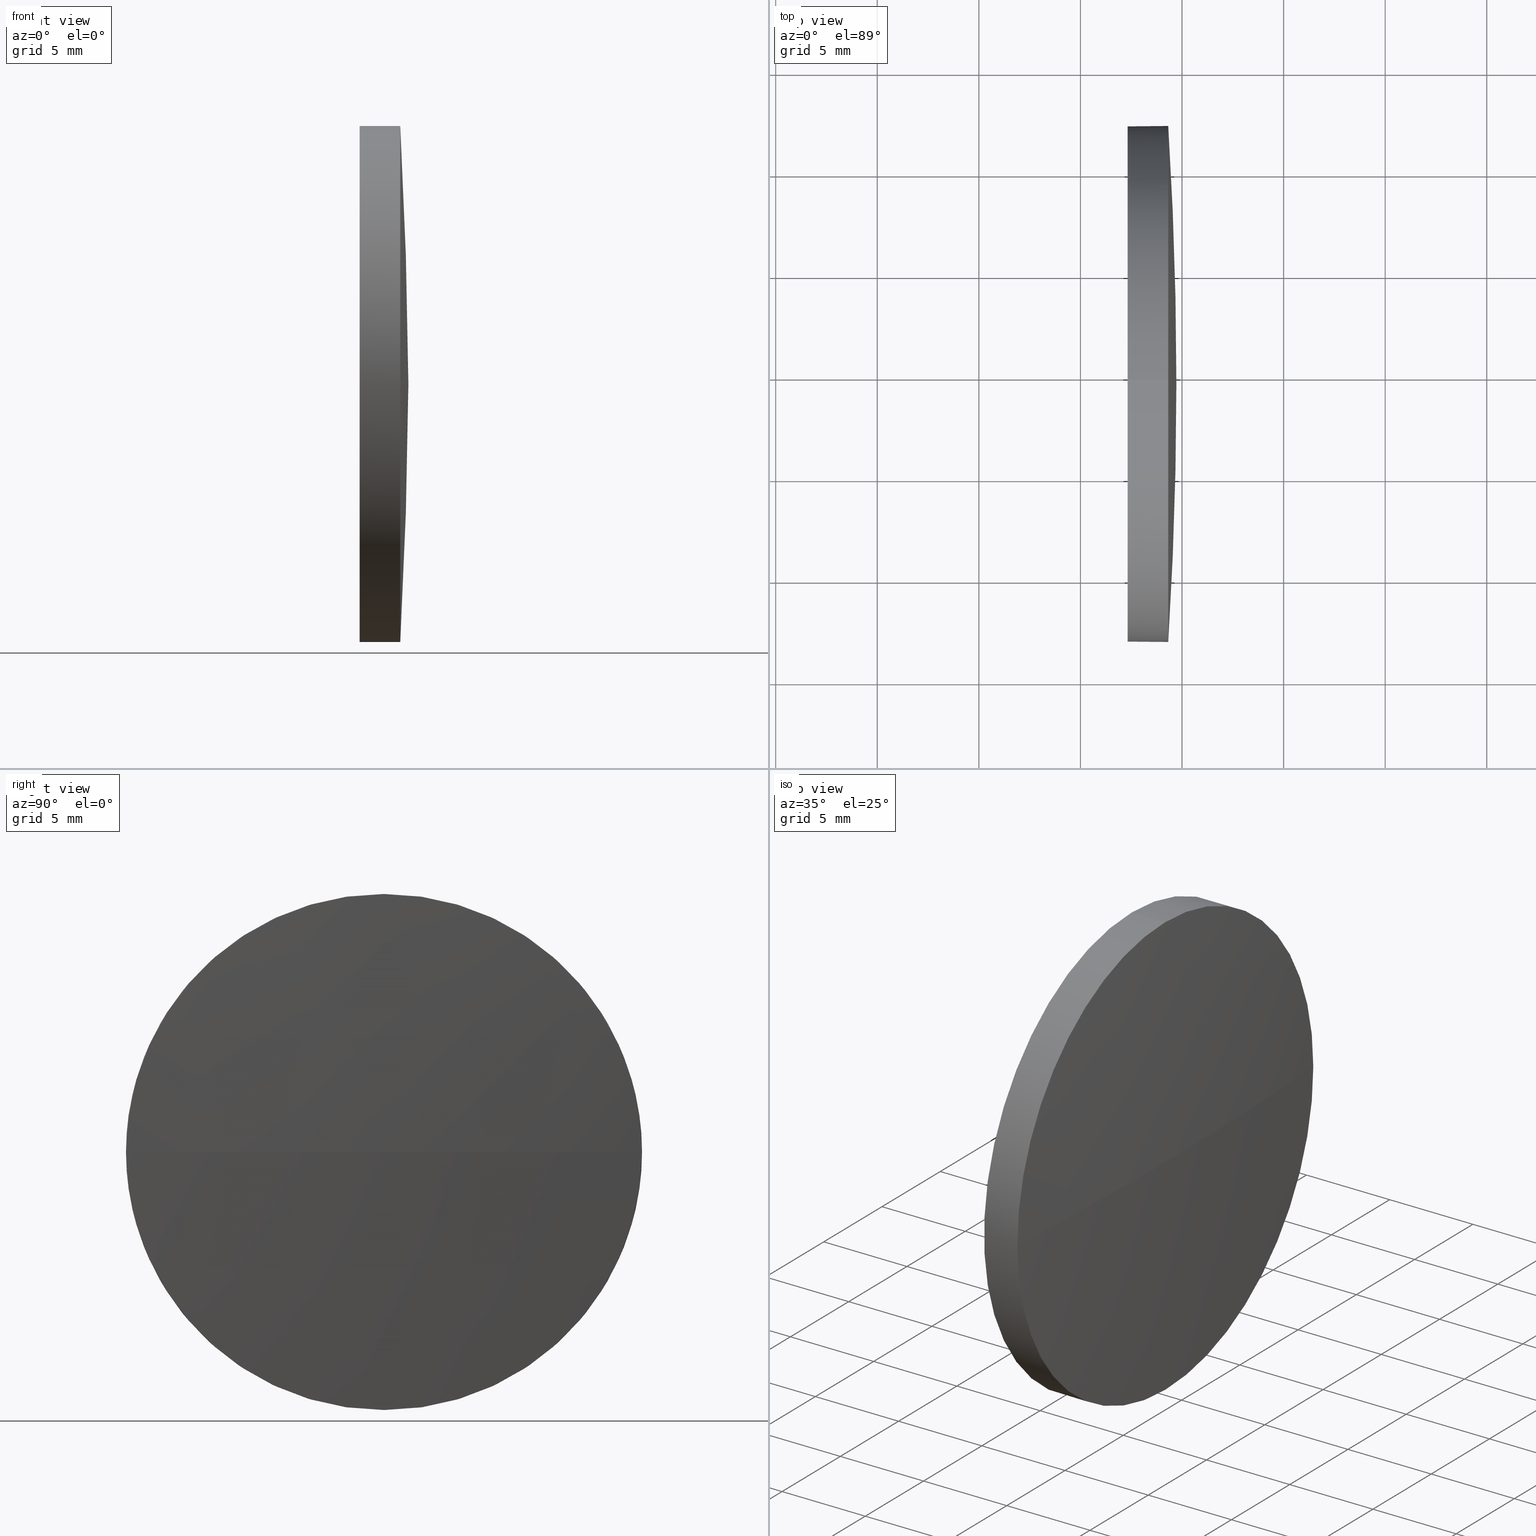
[diagram: canonical four-view strip — front | top / right | iso, engineering-drawing reading convention]
A machine part, canonical four-view strip (front | top / right | iso — engineering-drawing reading convention). The complete STEP part file that produces these views, byte-faithful:
ISO-10303-21;
HEADER;
FILE_DESCRIPTION (( 'STEP AP214' ),
    '1' );
FILE_NAME ('100453.STEP',
    '2019-06-10T02:49:05',
    ( '' ),
    ( '' ),
    'SwSTEP 2.0',
    'SolidWorks 2016',
    '' );
FILE_SCHEMA (( 'AUTOMOTIVE_DESIGN' ));
ENDSEC;

DATA;
#1 = ORIENTED_EDGE ( 'NONE', *, *, #100, .F. ) ;
#2 = DIRECTION ( 'NONE',  ( 0.0000000000000000000, 0.0000000000000000000, 1.000000000000000000 ) ) ;
#3 = EDGE_LOOP ( 'NONE', ( #59, #168, #81, #30, #111 ) ) ;
#4 = DIRECTION ( 'NONE',  ( -1.000000000000000000, -0.0000000000000000000, -0.0000000000000000000 ) ) ;
#5 = DIRECTION ( 'NONE',  ( 0.0000000000000000000, 1.000000000000000000, 1.224646799147353000E-016 ) ) ;
#6 = APPLICATION_CONTEXT ( 'automotive_design' ) ;
#7 = ORIENTED_EDGE ( 'NONE', *, *, #150, .F. ) ;
#8 = AXIS2_PLACEMENT_3D ( 'NONE', #160, #94, #104 ) ;
#9 = FACE_OUTER_BOUND ( 'NONE', #112, .T. ) ;
#10 = FACE_OUTER_BOUND ( 'NONE', #38, .T. ) ;
#11 = PRODUCT_DEFINITION_FORMATION_WITH_SPECIFIED_SOURCE ( '�κ�', '', #151, .NOT_KNOWN. ) ;
#12 = CIRCLE ( 'NONE', #63, 12.69999999999998900 ) ;
#13 = ADVANCED_FACE ( 'NONE', ( #9 ), #169, .T. ) ;
#14 = EDGE_CURVE ( 'NONE', #142, #50, #130, .T. ) ;
#15 = SURFACE_STYLE_USAGE ( .BOTH. , #76 ) ;
#16 = CARTESIAN_POINT ( 'NONE',  ( 477.3220861786303400, 184.5773825551713100, -12.69999999999998900 ) ) ;
#17 = SURFACE_SIDE_STYLE ('',( #124 ) ) ;
#18 = ORIENTED_EDGE ( 'NONE', *, *, #14, .F. ) ;
#19 = DIRECTION ( 'NONE',  ( 0.0000000000000000000, 1.224646799147353200E-016, -1.000000000000000000 ) ) ;
#20 = UNCERTAINTY_MEASURE_WITH_UNIT (LENGTH_MEASURE( 1.000000000000000100E-005 ), #33, 'distance_accuracy_value', 'NONE');
#21 =( GEOMETRIC_REPRESENTATION_CONTEXT ( 3 ) GLOBAL_UNCERTAINTY_ASSIGNED_CONTEXT ( ( #179 ) ) GLOBAL_UNIT_ASSIGNED_CONTEXT ( ( #133, #93, #166 ) ) REPRESENTATION_CONTEXT ( 'NONE', 'WORKASPACE' ) );
#22 = ORIENTED_EDGE ( 'NONE', *, *, #157, .T. ) ;
#23 = AXIS2_PLACEMENT_3D ( 'NONE', #164, #19, #5 ) ;
#24 = PRESENTATION_LAYER_ASSIGNMENT (  '', '', ( #171 ) ) ;
#25 = ADVANCED_FACE ( 'NONE', ( #52 ), #41, .T. ) ;
#26 = DIRECTION ( 'NONE',  ( -1.000000000000000000, -0.0000000000000000000, -0.0000000000000000000 ) ) ;
#27 = FACE_OUTER_BOUND ( 'NONE', #136, .T. ) ;
#28 = CARTESIAN_POINT ( 'NONE',  ( 479.3220861786303400, 184.5773825551713100, 0.0000000000000000000 ) ) ;
#29 = PLANE ( 'NONE',  #153 ) ;
#30 = ORIENTED_EDGE ( 'NONE', *, *, #157, .F. ) ;
#31 =( NAMED_UNIT ( * ) PLANE_ANGLE_UNIT ( ) SI_UNIT ( $, .RADIAN. ) );
#32 = SURFACE_STYLE_USAGE ( .BOTH. , #17 ) ;
#33 =( LENGTH_UNIT ( ) NAMED_UNIT ( * ) SI_UNIT ( .MILLI., .METRE. ) );
#34 = CIRCLE ( 'NONE', #122, 201.8124999999969000 ) ;
#35 = PRESENTATION_LAYER_ASSIGNMENT (  '', '', ( #186 ) ) ;
#36 = VECTOR ( 'NONE', #97, 1000.000000000000000 ) ;
#37 = ORIENTED_EDGE ( 'NONE', *, *, #80, .T. ) ;
#38 = EDGE_LOOP ( 'NONE', ( #75, #128, #174, #22, #87 ) ) ;
#39 = VERTEX_POINT ( 'NONE', #175 ) ;
#40 = DIRECTION ( 'NONE',  ( -0.0000000000000000000, 0.0000000000000000000, 1.000000000000000000 ) ) ;
#41 = CYLINDRICAL_SURFACE ( 'NONE', #154, 12.69999999999998900 ) ;
#42 = DIRECTION ( 'NONE',  ( 0.0000000000000000000, 0.0000000000000000000, 1.000000000000000000 ) ) ;
#43 = EDGE_CURVE ( 'NONE', #39, #55, #12, .T. ) ;
#44 = DIRECTION ( 'NONE',  ( 0.0000000000000000000, 0.0000000000000000000, 1.000000000000000000 ) ) ;
#45 = CARTESIAN_POINT ( 'NONE',  ( 477.3220861786303400, 184.5773825551713100, 12.69999999999998900 ) ) ;
#46 = PRESENTATION_STYLE_ASSIGNMENT (( #15 ) ) ;
#47 = APPLICATION_PROTOCOL_DEFINITION ( 'draft international standard', 'automotive_design', 1998, #117 ) ;
#48 = DIRECTION ( 'NONE',  ( -1.000000000000000000, -0.0000000000000000000, -0.0000000000000000000 ) ) ;
#49 =( NAMED_UNIT ( * ) PLANE_ANGLE_UNIT ( ) SI_UNIT ( $, .RADIAN. ) );
#50 = VERTEX_POINT ( 'NONE', #68 ) ;
#51 = CIRCLE ( 'NONE', #8, 12.69999999999998900 ) ;
#52 = FACE_OUTER_BOUND ( 'NONE', #3, .T. ) ;
#53 = EDGE_CURVE ( 'NONE', #50, #39, #83, .T. ) ;
#54 = PRODUCT_DEFINITION ( 'δ֪', '', #11, #181 ) ;
#55 = VERTEX_POINT ( 'NONE', #113 ) ;
#56 = DIRECTION ( 'NONE',  ( -1.000000000000000000, -0.0000000000000000000, -0.0000000000000000000 ) ) ;
#57 = CARTESIAN_POINT ( 'NONE',  ( 471.5838681429539700, 184.5773825551713100, 0.0000000000000000000 ) ) ;
#58 = DIRECTION ( 'NONE',  ( 1.000000000000000000, 0.0000000000000000000, 0.0000000000000000000 ) ) ;
#59 = ORIENTED_EDGE ( 'NONE', *, *, #14, .T. ) ;
#60 = MECHANICAL_DESIGN_GEOMETRIC_PRESENTATION_REPRESENTATION (  '', ( #171 ), #69 ) ;
#61 = DIRECTION ( 'NONE',  ( -0.0000000000000000000, 0.0000000000000000000, -1.000000000000000000 ) ) ;
#62 = CYLINDRICAL_SURFACE ( 'NONE', #72, 12.69999999999998900 ) ;
#63 = AXIS2_PLACEMENT_3D ( 'NONE', #28, #89, #132 ) ;
#64 = MECHANICAL_DESIGN_GEOMETRIC_PRESENTATION_REPRESENTATION (  '', ( #186 ), #21 ) ;
#65 = ORIENTED_EDGE ( 'NONE', *, *, #100, .T. ) ;
#66 = COLOUR_RGB ( '',1.000000000000000000, 1.000000000000000000, 1.000000000000000000 ) ;
#67 = PRODUCT_DEFINITION_SHAPE ( 'NONE', 'NONE',  #54 ) ;
#68 = CARTESIAN_POINT ( 'NONE',  ( 479.3220861786303400, 184.5773825551713100, -12.69999999999998900 ) ) ;
#69 =( GEOMETRIC_REPRESENTATION_CONTEXT ( 3 ) GLOBAL_UNCERTAINTY_ASSIGNED_CONTEXT ( ( #123 ) ) GLOBAL_UNIT_ASSIGNED_CONTEXT ( ( #118, #49, #106 ) ) REPRESENTATION_CONTEXT ( 'NONE', 'WORKASPACE' ) );
#70 = DIRECTION ( 'NONE',  ( -1.000000000000000000, -0.0000000000000000000, -0.0000000000000000000 ) ) ;
#71 = CLOSED_SHELL ( 'NONE', ( #25, #13, #143, #103, #115 ) ) ;
#72 = AXIS2_PLACEMENT_3D ( 'NONE', #159, #56, #88 ) ;
#73 = CARTESIAN_POINT ( 'NONE',  ( 479.7220861786303800, 184.5773825551711100, 0.0000000000000000000 ) ) ;
#74 = CARTESIAN_POINT ( 'NONE',  ( 277.9095861786335000, 184.5773825551711100, 0.0000000000000000000 ) ) ;
#75 = ORIENTED_EDGE ( 'NONE', *, *, #120, .F. ) ;
#76 = SURFACE_SIDE_STYLE ('',( #102 ) ) ;
#77 = DIRECTION ( 'NONE',  ( 1.000000000000000000, 0.0000000000000000000, 0.0000000000000000000 ) ) ;
#78 = ORIENTED_EDGE ( 'NONE', *, *, #53, .F. ) ;
#79 = CIRCLE ( 'NONE', #167, 12.69999999999998900 ) ;
#80 = EDGE_CURVE ( 'NONE', #121, #107, #79, .T. ) ;
#81 = ORIENTED_EDGE ( 'NONE', *, *, #95, .F. ) ;
#82 = AXIS2_PLACEMENT_3D ( 'NONE', #86, #131, #129 ) ;
#83 = CIRCLE ( 'NONE', #170, 12.69999999999998900 ) ;
#84 =( GEOMETRIC_REPRESENTATION_CONTEXT ( 3 ) GLOBAL_UNCERTAINTY_ASSIGNED_CONTEXT ( ( #20 ) ) GLOBAL_UNIT_ASSIGNED_CONTEXT ( ( #33, #31, #147 ) ) REPRESENTATION_CONTEXT ( 'NONE', 'WORKASPACE' ) );
#85 = DIRECTION ( 'NONE',  ( -1.000000000000000000, -0.0000000000000000000, -0.0000000000000000000 ) ) ;
#86 = CARTESIAN_POINT ( 'NONE',  ( 277.9095861786335000, 184.5773825551711100, 0.0000000000000000000 ) ) ;
#87 = ORIENTED_EDGE ( 'NONE', *, *, #80, .F. ) ;
#88 = DIRECTION ( 'NONE',  ( 0.0000000000000000000, 0.0000000000000000000, 1.000000000000000000 ) ) ;
#89 = DIRECTION ( 'NONE',  ( -1.000000000000000000, -0.0000000000000000000, -0.0000000000000000000 ) ) ;
#90 = DIRECTION ( 'NONE',  ( 1.000000000000000000, 0.0000000000000000000, 0.0000000000000000000 ) ) ;
#91 = FACE_OUTER_BOUND ( 'NONE', #125, .T. ) ;
#92 = FILL_AREA_STYLE ('',( #165 ) ) ;
#93 =( NAMED_UNIT ( * ) PLANE_ANGLE_UNIT ( ) SI_UNIT ( $, .RADIAN. ) );
#94 = DIRECTION ( 'NONE',  ( -1.000000000000000000, -0.0000000000000000000, -0.0000000000000000000 ) ) ;
#95 = EDGE_CURVE ( 'NONE', #107, #121, #126, .T. ) ;
#96 = ORIENTED_EDGE ( 'NONE', *, *, #150, .T. ) ;
#97 = DIRECTION ( 'NONE',  ( -1.000000000000000000, -0.0000000000000000000, -0.0000000000000000000 ) ) ;
#98 = AXIS2_PLACEMENT_3D ( 'NONE', #108, #119, #77 ) ;
#99 = ORIENTED_EDGE ( 'NONE', *, *, #114, .F. ) ;
#100 = EDGE_CURVE ( 'NONE', #139, #142, #34, .T. ) ;
#101 = DIRECTION ( 'NONE',  ( -1.000000000000000000, -0.0000000000000000000, -0.0000000000000000000 ) ) ;
#102 = SURFACE_STYLE_FILL_AREA ( #92 ) ;
#103 = ADVANCED_FACE ( 'NONE', ( #10 ), #62, .T. ) ;
#104 = DIRECTION ( 'NONE',  ( 0.0000000000000000000, 0.0000000000000000000, 1.000000000000000000 ) ) ;
#105 = CARTESIAN_POINT ( 'NONE',  ( 479.3220861786303400, 197.2773825551712400, 0.0000000000000000000 ) ) ;
#106 =( NAMED_UNIT ( * ) SI_UNIT ( $, .STERADIAN. ) SOLID_ANGLE_UNIT ( ) );
#107 = VERTEX_POINT ( 'NONE', #45 ) ;
#108 = CARTESIAN_POINT ( 'NONE',  ( 0.0000000000000000000, 0.0000000000000000000, 0.0000000000000000000 ) ) ;
#109 = APPLICATION_PROTOCOL_DEFINITION ( 'draft international standard', 'automotive_design', 1998, #6 ) ;
#110 = SPHERICAL_SURFACE ( 'NONE', #141, 201.8124999999969000 ) ;
#111 = ORIENTED_EDGE ( 'NONE', *, *, #114, .T. ) ;
#112 = EDGE_LOOP ( 'NONE', ( #1, #96, #78, #18 ) ) ;
#113 = CARTESIAN_POINT ( 'NONE',  ( 479.3220861786303400, 184.5773825551713100, 12.69999999999998900 ) ) ;
#114 = EDGE_CURVE ( 'NONE', #55, #142, #51, .T. ) ;
#115 = ADVANCED_FACE ( 'NONE', ( #91 ), #29, .F. ) ;
#116 = DIRECTION ( 'NONE',  ( 0.0000000000000000000, 0.0000000000000000000, 1.000000000000000000 ) ) ;
#117 = APPLICATION_CONTEXT ( 'automotive_design' ) ;
#118 =( LENGTH_UNIT ( ) NAMED_UNIT ( * ) SI_UNIT ( .MILLI., .METRE. ) );
#119 = DIRECTION ( 'NONE',  ( 0.0000000000000000000, 0.0000000000000000000, 1.000000000000000000 ) ) ;
#120 = EDGE_CURVE ( 'NONE', #50, #121, #145, .T. ) ;
#121 = VERTEX_POINT ( 'NONE', #16 ) ;
#122 = AXIS2_PLACEMENT_3D ( 'NONE', #180, #40, #90 ) ;
#123 = UNCERTAINTY_MEASURE_WITH_UNIT (LENGTH_MEASURE( 1.000000000000000100E-005 ), #118, 'distance_accuracy_value', 'NONE');
#124 = SURFACE_STYLE_FILL_AREA ( #182 ) ;
#125 = EDGE_LOOP ( 'NONE', ( #162, #37 ) ) ;
#126 = CIRCLE ( 'NONE', #178, 12.69999999999998900 ) ;
#127 = AXIS2_PLACEMENT_3D ( 'NONE', #146, #26, #2 ) ;
#128 = ORIENTED_EDGE ( 'NONE', *, *, #53, .T. ) ;
#129 = DIRECTION ( 'NONE',  ( 0.0000000000000000000, 1.000000000000000000, 0.0000000000000000000 ) ) ;
#130 = CIRCLE ( 'NONE', #127, 12.69999999999998900 ) ;
#131 = DIRECTION ( 'NONE',  ( -0.0000000000000000000, 0.0000000000000000000, -1.000000000000000000 ) ) ;
#132 = DIRECTION ( 'NONE',  ( 0.0000000000000000000, 0.0000000000000000000, 1.000000000000000000 ) ) ;
#133 =( LENGTH_UNIT ( ) NAMED_UNIT ( * ) SI_UNIT ( .MILLI., .METRE. ) );
#134 = PRODUCT_RELATED_PRODUCT_CATEGORY ( 'part', '', ( #151 ) ) ;
#135 = CARTESIAN_POINT ( 'NONE',  ( 471.5838681429539700, 184.5773825551713100, -12.69999999999998900 ) ) ;
#136 = EDGE_LOOP ( 'NONE', ( #7, #65, #99, #183 ) ) ;
#137 = CARTESIAN_POINT ( 'NONE',  ( 477.3220861786303400, 184.5773825551713100, 0.0000000000000000000 ) ) ;
#138 = FILL_AREA_STYLE_COLOUR ( '', #161 ) ;
#139 = VERTEX_POINT ( 'NONE', #73 ) ;
#140 = VECTOR ( 'NONE', #48, 1000.000000000000000 ) ;
#141 = AXIS2_PLACEMENT_3D ( 'NONE', #74, #61, #152 ) ;
#142 = VERTEX_POINT ( 'NONE', #105 ) ;
#143 = ADVANCED_FACE ( 'NONE', ( #27 ), #110, .T. ) ;
#144 = CARTESIAN_POINT ( 'NONE',  ( 477.3220861786303400, 184.5773825551713100, 0.0000000000000000000 ) ) ;
#145 = LINE ( 'NONE', #135, #140 ) ;
#146 = CARTESIAN_POINT ( 'NONE',  ( 479.3220861786303400, 184.5773825551713100, 0.0000000000000000000 ) ) ;
#147 =( NAMED_UNIT ( * ) SI_UNIT ( $, .STERADIAN. ) SOLID_ANGLE_UNIT ( ) );
#148 = PRESENTATION_STYLE_ASSIGNMENT (( #32 ) ) ;
#149 = CARTESIAN_POINT ( 'NONE',  ( 471.5838681429539700, 184.5773825551713100, 12.69999999999998900 ) ) ;
#150 = EDGE_CURVE ( 'NONE', #139, #39, #185, .T. ) ;
#151 = PRODUCT ( '100453', '100453', '', ( #184 ) ) ;
#152 = DIRECTION ( 'NONE',  ( 0.0000000000000000000, 1.000000000000000000, 0.0000000000000000000 ) ) ;
#153 = AXIS2_PLACEMENT_3D ( 'NONE', #137, #58, #163 ) ;
#154 = AXIS2_PLACEMENT_3D ( 'NONE', #57, #70, #42 ) ;
#155 = ADVANCED_BREP_SHAPE_REPRESENTATION ( '100453', ( #156, #98 ), #84 ) ;
#156 = MANIFOLD_SOLID_BREP ( '��ת1', #71 ) ;
#157 = EDGE_CURVE ( 'NONE', #55, #107, #173, .T. ) ;
#158 = CARTESIAN_POINT ( 'NONE',  ( 477.3220861786303400, 184.5773825551713100, 0.0000000000000000000 ) ) ;
#159 = CARTESIAN_POINT ( 'NONE',  ( 471.5838681429539700, 184.5773825551713100, 0.0000000000000000000 ) ) ;
#160 = CARTESIAN_POINT ( 'NONE',  ( 479.3220861786303400, 184.5773825551713100, 0.0000000000000000000 ) ) ;
#161 = COLOUR_RGB ( '',1.000000000000000000, 1.000000000000000000, 1.000000000000000000 ) ;
#162 = ORIENTED_EDGE ( 'NONE', *, *, #95, .T. ) ;
#163 = DIRECTION ( 'NONE',  ( 0.0000000000000000000, 0.0000000000000000000, -1.000000000000000000 ) ) ;
#164 = CARTESIAN_POINT ( 'NONE',  ( 277.9095861786335000, 184.5773825551711100, 0.0000000000000000000 ) ) ;
#165 = FILL_AREA_STYLE_COLOUR ( '', #66 ) ;
#166 =( NAMED_UNIT ( * ) SI_UNIT ( $, .STERADIAN. ) SOLID_ANGLE_UNIT ( ) );
#167 = AXIS2_PLACEMENT_3D ( 'NONE', #144, #101, #44 ) ;
#168 = ORIENTED_EDGE ( 'NONE', *, *, #120, .T. ) ;
#169 = SPHERICAL_SURFACE ( 'NONE', #82, 201.8124999999969000 ) ;
#170 = AXIS2_PLACEMENT_3D ( 'NONE', #172, #85, #177 ) ;
#171 = STYLED_ITEM ( 'NONE', ( #46 ), #156 ) ;
#172 = CARTESIAN_POINT ( 'NONE',  ( 479.3220861786303400, 184.5773825551713100, 0.0000000000000000000 ) ) ;
#173 = LINE ( 'NONE', #149, #36 ) ;
#174 = ORIENTED_EDGE ( 'NONE', *, *, #43, .T. ) ;
#175 = CARTESIAN_POINT ( 'NONE',  ( 479.3220861786303400, 171.8773825551711800, -1.555301434917129200E-015 ) ) ;
#176 = SHAPE_DEFINITION_REPRESENTATION ( #67, #155 ) ;
#177 = DIRECTION ( 'NONE',  ( 0.0000000000000000000, 0.0000000000000000000, 1.000000000000000000 ) ) ;
#178 = AXIS2_PLACEMENT_3D ( 'NONE', #158, #4, #116 ) ;
#179 = UNCERTAINTY_MEASURE_WITH_UNIT (LENGTH_MEASURE( 1.000000000000000100E-005 ), #133, 'distance_accuracy_value', 'NONE');
#180 = CARTESIAN_POINT ( 'NONE',  ( 277.9095861786335000, 184.5773825551711100, 0.0000000000000000000 ) ) ;
#181 = PRODUCT_DEFINITION_CONTEXT ( 'detailed design', #117, 'design' ) ;
#182 = FILL_AREA_STYLE ('',( #138 ) ) ;
#183 = ORIENTED_EDGE ( 'NONE', *, *, #43, .F. ) ;
#184 = PRODUCT_CONTEXT ( 'NONE', #6, 'mechanical' ) ;
#185 = CIRCLE ( 'NONE', #23, 201.8124999999969300 ) ;
#186 = STYLED_ITEM ( 'NONE', ( #148 ), #155 ) ;
ENDSEC;
END-ISO-10303-21;
